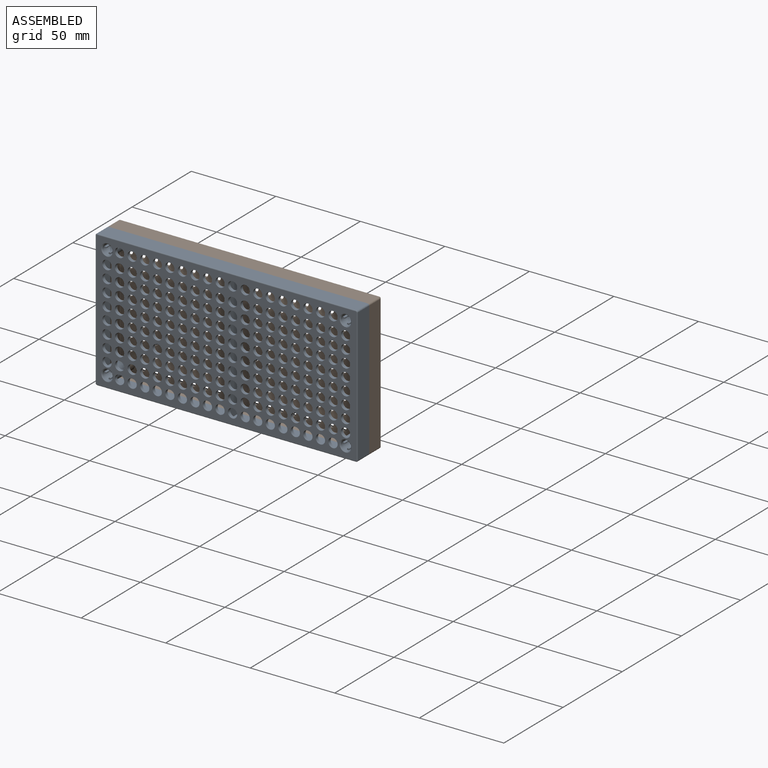
[diagram: assembled view]
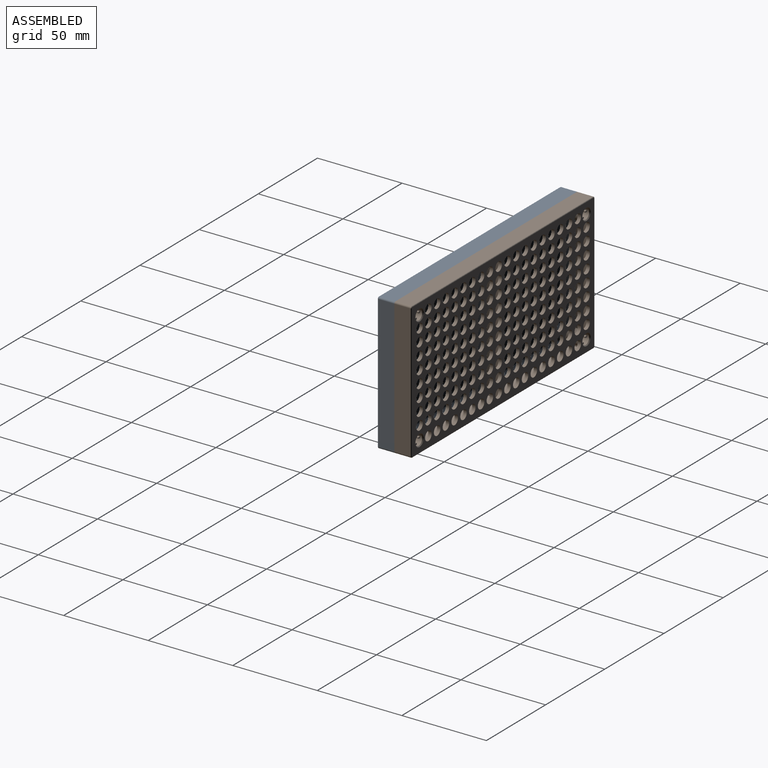
[diagram: assembled view, second angle]
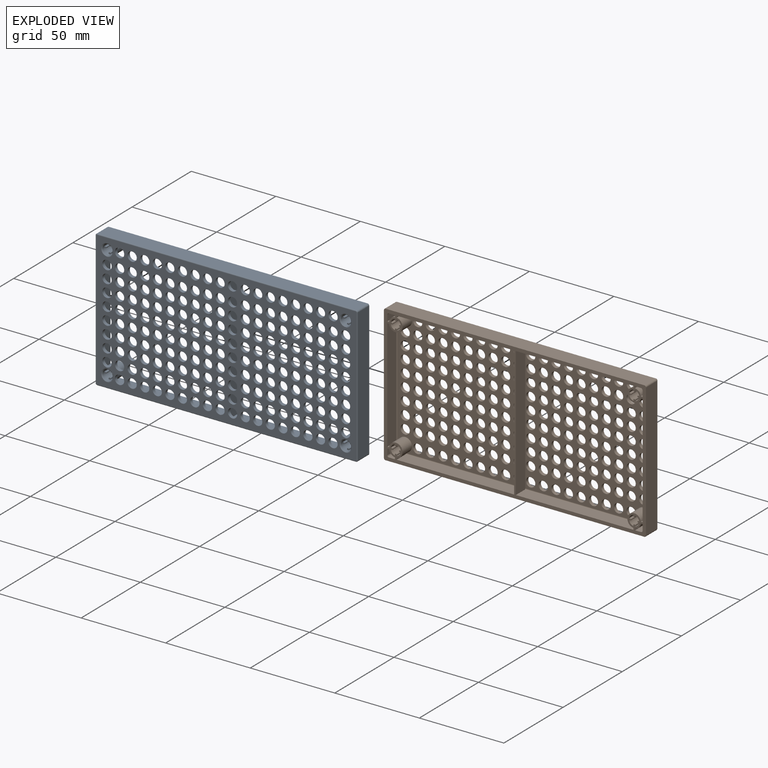
[diagram: exploded view]
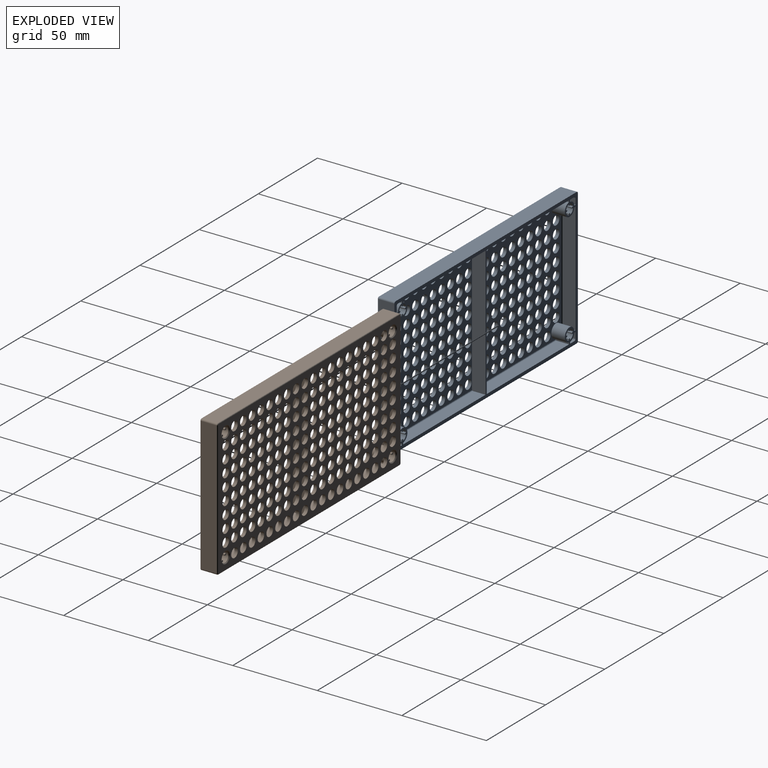
[diagram: exploded view, second angle]
ASSEMBLY  parts=2 mates=2
PART A: 370 faces, bbox 155.2x10x81.2 mm
  f0: plane 154x80mm, normal (0,1,0), area 7509.2mm2, adj f1,f2,f3,f4,f5,f6,f7,f8
  f1: torus R=0.5mm, axis (0,1,0), area 1mm2, adj f0,f2,f8,f10
  f2: cylinder r=0.5mm len=79mm, axis (0,0,1), area 62mm2, adj f0,f1,f3,f11
  f3: torus R=0.5mm, axis (0,-1,0), area 1mm2, adj f0,f2,f4,f12
  f4: cylinder r=0.5mm len=153mm, axis (1,0,0), area 120.2mm2, adj f0,f3,f5,f13
  f5: torus R=0.5mm, axis (0,1,0), area 1mm2, adj f0,f4,f6,f14
  f6: cylinder r=0.5mm len=79mm, axis (0,0,-1), area 62mm2, adj f0,f5,f7,f15
  f7: torus R=0.5mm, axis (0,1,0), area 1mm2, adj f0,f6,f8,f16
  f8: cylinder r=0.5mm len=153mm, axis (-1,0,0), area 120.2mm2, adj f0,f1,f7,f9
  f9: plane 153x9.5mm, normal (0,0,-1), area 1453.5mm2, adj f8,f10,f16,f17
  f10: cylinder r=1mm len=9.5mm, axis (0,1,0), area 14.9mm2, adj f1,f9,f11,f17
  f11: plane 79x9.5mm, normal (-1,0,0), area 750.5mm2, adj f2,f10,f12,f17
  f12: cylinder r=1mm len=9.5mm, axis (0,-1,0), area 14.9mm2, adj f3,f11,f13,f17
  f13: plane 153x9.5mm, normal (0,0,1), area 1453.5mm2, adj f4,f12,f14,f17
  f14: cylinder r=1mm len=9.5mm, axis (0,1,0), area 14.9mm2, adj f5,f13,f15,f17
  f15: plane 79x9.5mm, normal (1,0,0), area 750.5mm2, adj f6,f14,f16,f17
  f16: cylinder r=1mm len=9.5mm, axis (0,1,0), area 14.9mm2, adj f7,f9,f15,f17
  f17: plane 155x81mm, normal (0,-1,0), area 1115.8mm2, adj f9,f10,f11,f12,f13,f14,f15,f16
  f18: plane 8x1.03mm, normal (0,0,1), area 8.2mm2, adj f17,f20,f27,f34,f84
  f19: plane 7.5x3.5mm, normal (1,0,0), area 26.3mm2, adj f17,f22,f26,f100
  f20: plane 7.5x3.5mm, normal (1,0,0), area 26.3mm2, adj f17,f18,f27,f88
  f21: plane 66x7.5mm, normal (1,0,0), area 495mm2, adj f17,f25,f28,f85
  f22: plane 8x1.03mm, normal (0,0,-1), area 8.2mm2, adj f17,f19,f24,f26,f32
  f23: cylinder r=4mm len=8mm, axis (0,-1,0), area 142.8mm2, adj f17,f25,f33,f98
  f24: cylinder r=4mm len=8mm, axis (0,-1,0), area 42.2mm2, adj f17,f22,f32,f99
  f25: plane 8x1.03mm, normal (0,0,1), area 8.2mm2, adj f17,f21,f23,f28,f33
  f26: cylinder r=0.5mm len=3.5mm, axis (0,0,1), area 2.7mm2, adj f19,f22,f32,f101
  f27: cylinder r=0.5mm len=3.5mm, axis (0,0,1), area 2.7mm2, adj f18,f20,f34,f89
  f28: cylinder r=0.5mm len=66mm, axis (0,0,1), area 51.8mm2, adj f21,f25,f33,f85
  f29: plane 3.8x3.8mm, normal (0,-1,0), area 6.9mm2, adj f35,f37,f41,f58,f65,f70
  f30: plane 76x74.5mm, normal (0,-1,0), area 3216.5mm2, adj f36,f38,f40,f44,f45,f49,f55,f57
  f31: plane 4x4mm, normal (0,-1,0), area 7.1mm2, adj f46,f54,f56,f59,f90,f92
  f32: plane 4x4mm, normal (0,-1,0), area 7.1mm2, adj f22,f24,f26,f48,f99,f101
  f33: plane 76x74.5mm, normal (0,-1,0), area 3216.8mm2, adj f23,f25,f28,f42,f47,f82,f83,f85
  f34: plane 4x4mm, normal (0,-1,0), area 7.1mm2, adj f18,f27,f43,f84,f86,f89
  f35: cylinder r=0.2mm len=0.56mm, axis (0,0,1), area 0.2mm2, adj f29,f37,f79,f80,f81
  f36: cylinder r=4mm len=8mm, axis (0,-1,0), area 140.1mm2, adj f17,f30,f38,f77,f95,f96
  f37: cylinder r=4mm len=8mm, axis (0,-1,0), area 39.5mm2, adj f17,f29,f35,f64,f65,f81
  f38: cylinder r=0.2mm len=0.56mm, axis (0,0,-1), area 0.2mm2, adj f30,f36,f39,f76,f77
  f39: torus R=0.3mm, axis (1,0,0), area 0.2mm2, adj f38,f40,f75,f76
  f40: cylinder r=0.5mm len=69.3mm, axis (1,0,0), area 54.4mm2, adj f30,f39,f44,f71
  f41: cylinder r=0.5mm len=3.3mm, axis (1,0,0), area 2.6mm2, adj f29,f70,f72,f79
  f42: cylinder r=0.5mm len=69.5mm, axis (1,0,0), area 54.6mm2, adj f33,f73,f82,f87
  f43: cylinder r=0.5mm len=3.5mm, axis (1,0,0), area 2.7mm2, adj f34,f74,f86,f89
  f44: plane 77x8mm, normal (1,0,0), area 615.9mm2, adj f17,f30,f40,f45,f50,f71
  f45: cylinder r=0.5mm len=69.5mm, axis (-1,0,0), area 54.6mm2, adj f30,f44,f49,f50
  f46: cylinder r=0.5mm len=3.5mm, axis (-1,0,0), area 2.7mm2, adj f31,f51,f54,f92
  f47: cylinder r=0.5mm len=69.5mm, axis (-1,0,0), area 54.6mm2, adj f33,f52,f87,f98
  f48: cylinder r=0.5mm len=3.5mm, axis (-1,0,0), area 2.7mm2, adj f32,f53,f99,f101
  f49: plane 8x1.03mm, normal (-1,0,0), area 8.2mm2, adj f17,f30,f45,f50,f55
  f50: plane 69.5x7.5mm, normal (0,0,1), area 521.2mm2, adj f17,f44,f45,f49
  f51: plane 7.5x3.5mm, normal (0,0,1), area 26.3mm2, adj f17,f46,f54,f91
  f52: plane 69.5x7.5mm, normal (0,0,1), area 521.3mm2, adj f17,f47,f87,f98
  f53: plane 7.5x3.5mm, normal (0,0,1), area 26.3mm2, adj f17,f48,f99,f100
  f54: plane 8x1.03mm, normal (1,0,0), area 8.2mm2, adj f17,f31,f46,f51,f56
  f55: cylinder r=4mm len=8mm, axis (0,1,0), area 142.8mm2, adj f17,f30,f49,f57
  f56: cylinder r=4mm len=8mm, axis (0,1,0), area 42.2mm2, adj f17,f31,f54,f90
  f57: plane 8x1.03mm, normal (0,0,1), area 8.2mm2, adj f17,f30,f55,f60,f68
  f58: cylinder r=0.5mm len=3.3mm, axis (0,0,-1), area 2.6mm2, adj f29,f61,f66,f70
  f59: cylinder r=0.5mm len=3.5mm, axis (0,0,-1), area 2.7mm2, adj f31,f67,f90,f92
  f60: cylinder r=0.5mm len=65.8mm, axis (0,0,-1), area 51.7mm2, adj f30,f57,f68,f94
  f61: torus R=0.3mm, axis (0,0,-1), area 0.2mm2, adj f58,f62,f63,f65
  f62: cylinder r=0.2mm len=7.5mm, axis (0,1,0), area 2.4mm2, adj f17,f61,f63,f66
  f63: plane 7.8x0.66mm, normal (0,0,1), area 5.1mm2, adj f17,f61,f62,f64,f65
  f64: cylinder r=0.2mm len=8mm, axis (0,-1,0), area 2.2mm2, adj f17,f37,f63,f65
  f65: cylinder r=0.2mm len=0.56mm, axis (-1,0,0), area 0.2mm2, adj f29,f37,f61,f63,f64
  f66: plane 7.5x3.3mm, normal (-1,0,0), area 24.7mm2, adj f17,f58,f62,f69
  f67: plane 7.5x3.5mm, normal (-1,0,0), area 26.2mm2, adj f17,f59,f90,f91
  f68: plane 65.8x7.5mm, normal (-1,0,0), area 493.5mm2, adj f17,f57,f60,f93
  f69: cylinder r=1mm len=7.5mm, axis (0,-1,0), area 11.8mm2, adj f17,f66,f70,f72
  f70: torus R=0.5mm, axis (0,-1,0), area 1mm2, adj f29,f41,f58,f69
  f71: plane 69.3x7.5mm, normal (0,0,-1), area 519.7mm2, adj f17,f40,f44,f75
  f72: plane 7.5x3.3mm, normal (0,0,-1), area 24.8mm2, adj f17,f41,f69,f78
  f73: plane 69.5x7.5mm, normal (0,0,-1), area 521.2mm2, adj f17,f42,f82,f87
  f74: plane 7.5x3.5mm, normal (0,0,-1), area 26.3mm2, adj f17,f43,f86,f88
  f75: cylinder r=0.2mm len=7.5mm, axis (0,1,0), area 2.4mm2, adj f17,f39,f71,f76
  f76: plane 7.8x0.66mm, normal (-1,0,0), area 5.1mm2, adj f17,f38,f39,f75,f77
  f77: cylinder r=0.2mm len=8mm, axis (0,-1,0), area 2.2mm2, adj f17,f36,f38,f76
  f78: cylinder r=0.2mm len=7.5mm, axis (0,-1,0), area 2.4mm2, adj f17,f72,f79,f80
  f79: torus R=0.3mm, axis (1,0,0), area 0.2mm2, adj f35,f41,f78,f80
  f80: plane 7.8x0.66mm, normal (1,0,0), area 5.1mm2, adj f17,f35,f78,f79,f81
  f81: cylinder r=0.2mm len=8mm, axis (0,1,0), area 2.2mm2, adj f17,f35,f37,f80
  f82: plane 8x1.03mm, normal (1,0,0), area 8.2mm2, adj f17,f33,f42,f73,f83
  f83: cylinder r=4mm len=8mm, axis (0,1,0), area 142.8mm2, adj f17,f33,f82,f85
  f84: cylinder r=4mm len=8mm, axis (0,1,0), area 42.2mm2, adj f17,f18,f34,f86
  f85: plane 8x1.03mm, normal (0,0,-1), area 8.2mm2, adj f17,f21,f28,f33,f83
  f86: plane 8x1.03mm, normal (-1,0,0), area 8.2mm2, adj f17,f34,f43,f74,f84
  f87: plane 77x8mm, normal (-1,0,0), area 615.9mm2, adj f17,f33,f42,f47,f52,f73
  f88: cylinder r=1mm len=7.5mm, axis (0,-1,0), area 11.8mm2, adj f17,f20,f74,f89
  f89: torus R=0.5mm, axis (0,-1,0), area 1mm2, adj f27,f34,f43,f88
  f90: plane 8x1.03mm, normal (0,0,-1), area 8.2mm2, adj f17,f31,f56,f59,f67
  f91: cylinder r=1mm len=7.5mm, axis (0,-1,0), area 11.8mm2, adj f17,f51,f67,f92
  f92: torus R=0.5mm, axis (0,-1,0), area 1mm2, adj f31,f46,f59,f91
  f93: cylinder r=0.2mm len=7.5mm, axis (0,-1,0), area 2.4mm2, adj f17,f68,f94,f97
  f94: torus R=0.3mm, axis (0,0,-1), area 0.2mm2, adj f60,f93,f95,f97
  f95: cylinder r=0.2mm len=0.56mm, axis (1,0,0), area 0.2mm2, adj f30,f36,f94,f96,f97
  f96: cylinder r=0.2mm len=8mm, axis (0,1,0), area 2.2mm2, adj f17,f36,f95,f97
  f97: plane 7.8x0.66mm, normal (0,0,-1), area 5.1mm2, adj f17,f93,f94,f95,f96
  f98: plane 8x1.03mm, normal (1,0,0), area 8.2mm2, adj f17,f23,f33,f47,f52
  f99: plane 8x1.03mm, normal (-1,0,0), area 8.2mm2, adj f17,f24,f32,f48,f53
  f100: cylinder r=1mm len=7.5mm, axis (0,-1,0), area 11.8mm2, adj f17,f19,f53,f101
  f101: torus R=0.5mm, axis (0,-1,0), area 1mm2, adj f26,f32,f48,f100
  f102: cylinder r=2.75mm len=5.5mm, axis (0,-1,0), area 34.6mm2, adj f0,f30
  f103: cylinder r=2.75mm len=5.5mm, axis (0,-1,0), area 34.6mm2, adj f0,f30
  f104: cylinder r=2.75mm len=5.5mm, axis (0,-1,0), area 34.6mm2, adj f0,f30
  f105: cylinder r=2.75mm len=5.5mm, axis (0,-1,0), area 34.6mm2, adj f0,f30
  f106: cylinder r=2.75mm len=5.5mm, axis (0,-1,0), area 34.6mm2, adj f0,f30
  f107: cylinder r=2.75mm len=5.5mm, axis (0,-1,0), area 34.6mm2, adj f0,f30
  f108: cylinder r=2.75mm len=5.5mm, axis (0,-1,0), area 34.6mm2, adj f0,f30
  f109: cylinder r=2.75mm len=5.5mm, axis (0,-1,0), area 34.6mm2, adj f0,f30
  f110: cylinder r=2.75mm len=5.5mm, axis (0,-1,0), area 34.6mm2, adj f0,f30
  f111: cylinder r=2.75mm len=5.5mm, axis (0,-1,0), area 34.6mm2, adj f0,f30
  f112: cylinder r=2.75mm len=5.5mm, axis (0,-1,0), area 34.6mm2, adj f0,f30
  f113: cylinder r=2.75mm len=5.5mm, axis (0,-1,0), area 34.6mm2, adj f0,f30
  f114: cylinder r=2.75mm len=5.5mm, axis (0,-1,0), area 34.6mm2, adj f0,f30
  f115: cylinder r=2.75mm len=5.5mm, axis (0,-1,0), area 34.6mm2, adj f0,f30
  f116: cylinder r=2.75mm len=5.5mm, axis (0,-1,0), area 34.6mm2, adj f0,f30
  f117: cylinder r=2.75mm len=5.5mm, axis (0,-1,0), area 34.6mm2, adj f0,f30
  f118: cylinder r=2.75mm len=5.5mm, axis (0,-1,0), area 34.6mm2, adj f0,f30
  f119: cylinder r=2.75mm len=5.5mm, axis (0,-1,0), area 34.6mm2, adj f0,f30
  f120: cylinder r=2.75mm len=5.5mm, axis (0,-1,0), area 34.6mm2, adj f0,f30
  f121: cylinder r=2.75mm len=5.5mm, axis (0,-1,0), area 34.6mm2, adj f0,f30
  f122: cylinder r=2.75mm len=5.5mm, axis (0,-1,0), area 34.6mm2, adj f0,f30
  f123: cylinder r=2.75mm len=5.5mm, axis (0,-1,0), area 34.6mm2, adj f0,f30
  f124: cylinder r=2.75mm len=5.5mm, axis (0,-1,0), area 34.6mm2, adj f0,f30
  f125: cylinder r=2.75mm len=5.5mm, axis (0,-1,0), area 34.6mm2, adj f0,f30
  f126: cylinder r=2.75mm len=5.5mm, axis (0,-1,0), area 34.6mm2, adj f0,f30
  f127: cylinder r=2.75mm len=5.5mm, axis (0,-1,0), area 34.6mm2, adj f0,f30
  f128: cylinder r=2.75mm len=5.5mm, axis (0,-1,0), area 34.6mm2, adj f0,f30
  f129: cylinder r=2.75mm len=5.5mm, axis (0,-1,0), area 34.6mm2, adj f0,f30
  f130: cylinder r=2.75mm len=5.5mm, axis (0,-1,0), area 34.6mm2, adj f0,f30
  f131: cylinder r=2.75mm len=5.5mm, axis (0,-1,0), area 34.6mm2, adj f0,f30
  f132: cylinder r=2.75mm len=5.5mm, axis (0,-1,0), area 34.6mm2, adj f0,f30
  f133: cylinder r=2.75mm len=5.5mm, axis (0,-1,0), area 34.6mm2, adj f0,f30
  f134: cylinder r=2.75mm len=5.5mm, axis (0,-1,0), area 34.6mm2, adj f0,f30
  f135: cylinder r=2.75mm len=5.5mm, axis (0,-1,0), area 34.6mm2, adj f0,f30
  f136: cylinder r=2.75mm len=5.5mm, axis (0,-1,0), area 34.6mm2, adj f0,f30
  f137: cylinder r=2.75mm len=5.5mm, axis (0,-1,0), area 34.6mm2, adj f0,f30
  f138: cylinder r=2.75mm len=5.5mm, axis (0,-1,0), area 34.6mm2, adj f0,f30
  f139: cylinder r=2.75mm len=5.5mm, axis (0,-1,0), area 34.6mm2, adj f0,f30
  f140: cylinder r=2.75mm len=5.5mm, axis (0,-1,0), area 34.6mm2, adj f0,f30
  f141: cylinder r=2.75mm len=5.5mm, axis (0,-1,0), area 34.6mm2, adj f0,f30
  f142: cylinder r=2.75mm len=5.5mm, axis (0,-1,0), area 34.6mm2, adj f0,f30
  f143: cylinder r=2.75mm len=5.5mm, axis (0,-1,0), area 34.6mm2, adj f0,f30
  f144: cylinder r=2.75mm len=5.5mm, axis (0,-1,0), area 34.6mm2, adj f0,f30
  f145: cylinder r=2.75mm len=5.5mm, axis (0,-1,0), area 34.6mm2, adj f0,f30
  f146: cylinder r=2.75mm len=5.5mm, axis (0,-1,0), area 34.6mm2, adj f0,f30
  f147: cylinder r=2.75mm len=5.5mm, axis (0,-1,0), area 34.6mm2, adj f0,f30
  f148: cylinder r=2.75mm len=5.5mm, axis (0,-1,0), area 34.6mm2, adj f0,f30
  f149: cylinder r=2.75mm len=5.5mm, axis (0,-1,0), area 34.6mm2, adj f0,f30
  f150: cylinder r=2.75mm len=5.5mm, axis (0,-1,0), area 34.6mm2, adj f0,f30
  f151: cylinder r=2.75mm len=5.5mm, axis (0,-1,0), area 34.6mm2, adj f0,f30
  f152: cylinder r=2.75mm len=5.5mm, axis (0,-1,0), area 34.6mm2, adj f0,f30
  f153: cylinder r=2.75mm len=5.5mm, axis (0,-1,0), area 34.6mm2, adj f0,f30
  f154: cylinder r=2.75mm len=5.5mm, axis (0,-1,0), area 34.6mm2, adj f0,f30
  f155: cylinder r=2.75mm len=5.5mm, axis (0,-1,0), area 34.6mm2, adj f0,f30
  f156: cylinder r=2.75mm len=5.5mm, axis (0,-1,0), area 34.6mm2, adj f0,f30
  f157: cylinder r=2.75mm len=5.5mm, axis (0,-1,0), area 34.6mm2, adj f0,f30
  f158: cylinder r=2.75mm len=5.5mm, axis (0,-1,0), area 34.6mm2, adj f0,f30
  f159: cylinder r=2.75mm len=5.5mm, axis (0,-1,0), area 34.6mm2, adj f0,f30
  f160: cylinder r=2.75mm len=5.5mm, axis (0,-1,0), area 34.6mm2, adj f0,f30
  f161: cylinder r=2.75mm len=5.5mm, axis (0,-1,0), area 34.6mm2, adj f0,f30
  f162: cylinder r=2.75mm len=5.5mm, axis (0,-1,0), area 34.6mm2, adj f0,f30
  f163: cylinder r=2.75mm len=5.5mm, axis (0,-1,0), area 34.6mm2, adj f0,f30
  f164: cylinder r=2.75mm len=5.5mm, axis (0,-1,0), area 34.6mm2, adj f0,f30
  f165: cylinder r=2.75mm len=5.5mm, axis (0,-1,0), area 34.6mm2, adj f0,f30
  f166: cylinder r=2.75mm len=5.5mm, axis (0,-1,0), area 34.6mm2, adj f0,f30
  f167: cylinder r=2.75mm len=5.5mm, axis (0,-1,0), area 34.6mm2, adj f0,f30
  f168: cylinder r=2.75mm len=5.5mm, axis (0,-1,0), area 34.6mm2, adj f0,f30
  f169: cylinder r=2.75mm len=5.5mm, axis (0,-1,0), area 34.6mm2, adj f0,f30
  f170: cylinder r=2.75mm len=5.5mm, axis (0,-1,0), area 34.6mm2, adj f0,f30
  f171: cylinder r=2.75mm len=5.5mm, axis (0,-1,0), area 34.6mm2, adj f0,f30
  f172: cylinder r=2.75mm len=5.5mm, axis (0,-1,0), area 34.6mm2, adj f0,f30
  f173: cylinder r=2.75mm len=5.5mm, axis (0,-1,0), area 34.6mm2, adj f0,f30
  f174: cylinder r=2.75mm len=5.5mm, axis (0,-1,0), area 34.6mm2, adj f0,f30
  f175: cylinder r=2.75mm len=5.5mm, axis (0,-1,0), area 34.6mm2, adj f0,f30
  f176: cylinder r=2.75mm len=5.5mm, axis (0,-1,0), area 34.6mm2, adj f0,f30
  f177: cylinder r=2.75mm len=5.5mm, axis (0,-1,0), area 34.6mm2, adj f0,f30
  f178: cylinder r=2.75mm len=5.5mm, axis (0,-1,0), area 34.6mm2, adj f0,f30
  f179: cylinder r=2.75mm len=5.5mm, axis (0,-1,0), area 34.6mm2, adj f0,f30
  f180: cylinder r=2.75mm len=5.5mm, axis (0,-1,0), area 34.6mm2, adj f0,f30
  f181: cylinder r=2.75mm len=5.5mm, axis (0,-1,0), area 34.6mm2, adj f0,f30
  f182: cylinder r=2.75mm len=5.5mm, axis (0,-1,0), area 34.6mm2, adj f0,f33
  f183: cylinder r=2.75mm len=5.5mm, axis (0,-1,0), area 34.6mm2, adj f0,f33
  f184: cylinder r=2.75mm len=5.5mm, axis (0,-1,0), area 34.6mm2, adj f0,f33
  f185: cylinder r=2.75mm len=5.5mm, axis (0,-1,0), area 34.6mm2, adj f0,f33
  f186: cylinder r=2.75mm len=5.5mm, axis (0,-1,0), area 34.6mm2, adj f0,f33
  f187: cylinder r=2.75mm len=5.5mm, axis (0,-1,0), area 34.6mm2, adj f0,f33
  f188: cylinder r=2.75mm len=5.5mm, axis (0,-1,0), area 34.6mm2, adj f0,f33
  f189: cylinder r=2.75mm len=5.5mm, axis (0,-1,0), area 34.6mm2, adj f0,f33
  f190: cylinder r=2.75mm len=5.5mm, axis (0,-1,0), area 34.6mm2, adj f0,f33
  f191: cylinder r=2.75mm len=5.5mm, axis (0,-1,0), area 34.6mm2, adj f0,f33
  f192: cylinder r=2.75mm len=5.5mm, axis (0,-1,0), area 34.6mm2, adj f0,f33
  f193: cylinder r=2.75mm len=5.5mm, axis (0,-1,0), area 34.6mm2, adj f0,f33
  f194: cylinder r=2.75mm len=5.5mm, axis (0,-1,0), area 34.6mm2, adj f0,f33
  f195: cylinder r=2.75mm len=5.5mm, axis (0,-1,0), area 34.6mm2, adj f0,f33
  f196: cylinder r=2.75mm len=5.5mm, axis (0,-1,0), area 34.6mm2, adj f0,f33
  f197: cylinder r=2.75mm len=5.5mm, axis (0,-1,0), area 34.6mm2, adj f0,f33
  f198: cylinder r=2.75mm len=5.5mm, axis (0,-1,0), area 34.6mm2, adj f0,f33
  f199: cylinder r=2.75mm len=5.5mm, axis (0,-1,0), area 34.6mm2, adj f0,f33
  f200: cylinder r=2.75mm len=5.5mm, axis (0,-1,0), area 34.6mm2, adj f0,f33
  f201: cylinder r=2.75mm len=5.5mm, axis (0,-1,0), area 34.6mm2, adj f0,f33
  f202: cylinder r=2.75mm len=5.5mm, axis (0,-1,0), area 34.6mm2, adj f0,f33
  f203: cylinder r=2.75mm len=5.5mm, axis (0,-1,0), area 34.6mm2, adj f0,f33
  f204: cylinder r=2.75mm len=5.5mm, axis (0,-1,0), area 34.6mm2, adj f0,f33
  f205: cylinder r=2.75mm len=5.5mm, axis (0,-1,0), area 34.6mm2, adj f0,f33
  f206: cylinder r=2.75mm len=5.5mm, axis (0,-1,0), area 34.6mm2, adj f0,f33
  f207: cylinder r=2.75mm len=5.5mm, axis (0,-1,0), area 34.6mm2, adj f0,f33
  f208: cylinder r=2.75mm len=5.5mm, axis (0,-1,0), area 34.6mm2, adj f0,f33
  f209: cylinder r=2.75mm len=5.5mm, axis (0,-1,0), area 34.6mm2, adj f0,f33
  f210: cylinder r=2.75mm len=5.5mm, axis (0,-1,0), area 34.6mm2, adj f0,f33
  f211: cylinder r=2.75mm len=5.5mm, axis (0,-1,0), area 34.6mm2, adj f0,f33
  f212: cylinder r=2.75mm len=5.5mm, axis (0,-1,0), area 34.6mm2, adj f0,f33
  f213: cylinder r=2.75mm len=5.5mm, axis (0,-1,0), area 34.6mm2, adj f0,f33
  f214: cylinder r=2.75mm len=5.5mm, axis (0,-1,0), area 34.6mm2, adj f0,f33
  f215: cylinder r=2.75mm len=5.5mm, axis (0,-1,0), area 34.6mm2, adj f0,f33
  f216: cylinder r=2.75mm len=5.5mm, axis (0,-1,0), area 34.6mm2, adj f0,f33
  f217: cylinder r=2.75mm len=5.5mm, axis (0,-1,0), area 34.6mm2, adj f0,f33
  f218: cylinder r=2.75mm len=5.5mm, axis (0,-1,0), area 34.6mm2, adj f0,f33
  f219: cylinder r=2.75mm len=5.5mm, axis (0,-1,0), area 34.6mm2, adj f0,f33
  f220: cylinder r=2.75mm len=5.5mm, axis (0,-1,0), area 34.6mm2, adj f0,f33
  f221: cylinder r=2.75mm len=5.5mm, axis (0,-1,0), area 34.6mm2, adj f0,f33
  f222: cylinder r=2.75mm len=5.5mm, axis (0,-1,0), area 34.6mm2, adj f0,f33
  f223: cylinder r=2.75mm len=5.5mm, axis (0,-1,0), area 34.6mm2, adj f0,f33
  f224: cylinder r=2.75mm len=5.5mm, axis (0,-1,0), area 34.6mm2, adj f0,f33
  f225: cylinder r=2.75mm len=5.5mm, axis (0,-1,0), area 34.6mm2, adj f0,f33
  f226: cylinder r=2.75mm len=5.5mm, axis (0,-1,0), area 34.6mm2, adj f0,f33
  f227: cylinder r=2.75mm len=5.5mm, axis (0,-1,0), area 34.6mm2, adj f0,f33
  f228: cylinder r=2.75mm len=5.5mm, axis (0,-1,0), area 34.6mm2, adj f0,f33
  f229: cylinder r=2.75mm len=5.5mm, axis (0,-1,0), area 34.6mm2, adj f0,f33
  f230: cylinder r=2.75mm len=5.5mm, axis (0,-1,0), area 34.6mm2, adj f0,f33
  f231: cylinder r=2.75mm len=5.5mm, axis (0,-1,0), area 34.6mm2, adj f0,f33
  f232: cylinder r=2.75mm len=5.5mm, axis (0,-1,0), area 34.6mm2, adj f0,f33
  f233: cylinder r=2.75mm len=5.5mm, axis (0,-1,0), area 34.6mm2, adj f0,f33
  f234: cylinder r=2.75mm len=5.5mm, axis (0,-1,0), area 34.6mm2, adj f0,f33
  f235: cylinder r=2.75mm len=5.5mm, axis (0,-1,0), area 34.6mm2, adj f0,f33
  f236: cylinder r=2.75mm len=5.5mm, axis (0,-1,0), area 34.6mm2, adj f0,f33
  f237: cylinder r=2.75mm len=5.5mm, axis (0,-1,0), area 34.6mm2, adj f0,f33
  f238: cylinder r=2.75mm len=5.5mm, axis (0,-1,0), area 34.6mm2, adj f0,f33
  f239: cylinder r=2.75mm len=5.5mm, axis (0,-1,0), area 34.6mm2, adj f0,f33
  f240: cylinder r=2.75mm len=5.5mm, axis (0,-1,0), area 34.6mm2, adj f0,f33
  f241: cylinder r=2.75mm len=5.5mm, axis (0,-1,0), area 34.6mm2, adj f0,f33
  f242: cylinder r=2.75mm len=5.5mm, axis (0,-1,0), area 34.6mm2, adj f0,f33
  f243: cylinder r=2.75mm len=5.5mm, axis (0,-1,0), area 34.6mm2, adj f0,f33
  f244: cylinder r=2.75mm len=5.5mm, axis (0,-1,0), area 34.6mm2, adj f0,f33
  f245: cylinder r=2.75mm len=5.5mm, axis (0,-1,0), area 34.6mm2, adj f0,f33
  f246: cylinder r=2.75mm len=5.5mm, axis (0,-1,0), area 34.6mm2, adj f0,f33
  f247: cylinder r=2.75mm len=5.5mm, axis (0,-1,0), area 34.6mm2, adj f0,f33
  f248: cylinder r=2.75mm len=5.5mm, axis (0,-1,0), area 34.6mm2, adj f0,f33
  f249: cylinder r=2.75mm len=5.5mm, axis (0,-1,0), area 34.6mm2, adj f0,f33
  f250: cylinder r=2.75mm len=5.5mm, axis (0,-1,0), area 34.6mm2, adj f0,f33
  f251: cylinder r=2.75mm len=5.5mm, axis (0,-1,0), area 34.6mm2, adj f0,f33
  f252: cylinder r=2.75mm len=5.5mm, axis (0,-1,0), area 34.6mm2, adj f0,f33
  f253: cylinder r=2.75mm len=5.5mm, axis (0,-1,0), area 34.6mm2, adj f0,f33
  f254: cylinder r=2.75mm len=5.5mm, axis (0,-1,0), area 34.6mm2, adj f0,f33
  f255: cylinder r=2.75mm len=5.5mm, axis (0,-1,0), area 34.6mm2, adj f0,f33
  f256: cylinder r=2.75mm len=5.5mm, axis (0,-1,0), area 34.6mm2, adj f0,f33
  f257: cylinder r=2.75mm len=5.5mm, axis (0,-1,0), area 34.6mm2, adj f0,f33
  f258: cylinder r=2.75mm len=5.5mm, axis (0,-1,0), area 34.6mm2, adj f0,f33
  f259: cylinder r=2.75mm len=5.5mm, axis (0,-1,0), area 34.6mm2, adj f0,f33
  f260: cylinder r=2.75mm len=5.5mm, axis (0,-1,0), area 34.6mm2, adj f0,f33
  f261: cylinder r=2.75mm len=5.5mm, axis (0,-1,0), area 34.6mm2, adj f0,f33
  f262: cylinder r=2.75mm len=5.5mm, axis (0,-1,0), area 34.6mm2, adj f0,f30
  f263: cylinder r=2.75mm len=5.5mm, axis (0,-1,0), area 34.6mm2, adj f0,f30
  f264: cylinder r=2.75mm len=5.5mm, axis (0,-1,0), area 34.6mm2, adj f0,f30
  f265: cylinder r=2.75mm len=5.5mm, axis (0,-1,0), area 34.6mm2, adj f0,f30
  f266: cylinder r=2.75mm len=5.5mm, axis (0,-1,0), area 34.6mm2, adj f0,f30
  f267: cylinder r=2.75mm len=5.5mm, axis (0,-1,0), area 34.6mm2, adj f0,f30
  f268: cylinder r=2.75mm len=5.5mm, axis (0,-1,0), area 34.6mm2, adj f0,f30
  f269: cylinder r=2.75mm len=5.5mm, axis (0,-1,0), area 34.6mm2, adj f0,f30
  f270: cylinder r=2.75mm len=5.5mm, axis (0,-1,0), area 34.6mm2, adj f0,f30
  f271: cylinder r=2.75mm len=5.5mm, axis (0,-1,0), area 34.6mm2, adj f0,f33
  f272: cylinder r=2.75mm len=5.5mm, axis (0,-1,0), area 34.6mm2, adj f0,f33
  f273: cylinder r=2.75mm len=5.5mm, axis (0,-1,0), area 34.6mm2, adj f0,f33
  f274: cylinder r=2.75mm len=5.5mm, axis (0,-1,0), area 34.6mm2, adj f0,f33
  f275: cylinder r=2.75mm len=5.5mm, axis (0,-1,0), area 34.6mm2, adj f0,f33
  f276: cylinder r=2.75mm len=5.5mm, axis (0,-1,0), area 34.6mm2, adj f0,f33
  f277: cylinder r=2.75mm len=5.5mm, axis (0,-1,0), area 34.6mm2, adj f0,f33
  f278: cylinder r=2.75mm len=5.5mm, axis (0,-1,0), area 34.6mm2, adj f0,f33
  f279: cylinder r=2.75mm len=5.5mm, axis (0,-1,0), area 34.6mm2, adj f0,f33
  f280: cylinder r=2.75mm len=5.5mm, axis (0,1,0), area 34.6mm2, adj f0,f30
  f281: cylinder r=2.75mm len=5.5mm, axis (0,1,0), area 34.6mm2, adj f0,f30
  f282: cylinder r=2.75mm len=5.5mm, axis (0,1,0), area 34.6mm2, adj f0,f30
  f283: cylinder r=2.75mm len=5.5mm, axis (0,1,0), area 34.6mm2, adj f0,f30
  f284: cylinder r=2.75mm len=5.5mm, axis (0,1,0), area 34.6mm2, adj f0,f30
  f285: cylinder r=2.75mm len=5.5mm, axis (0,1,0), area 34.6mm2, adj f0,f30
  f286: cylinder r=2.75mm len=5.5mm, axis (0,1,0), area 34.6mm2, adj f0,f30
  f287: cylinder r=2.75mm len=5.5mm, axis (0,1,0), area 34.6mm2, adj f0,f30
  f288: cylinder r=2.75mm len=5.5mm, axis (0,1,0), area 34.6mm2, adj f0,f30
  f289: cylinder r=2.75mm len=5.5mm, axis (0,1,0), area 34.6mm2, adj f0,f33
  f290: cylinder r=2.75mm len=5.5mm, axis (0,1,0), area 34.6mm2, adj f0,f33
  f291: cylinder r=2.75mm len=5.5mm, axis (0,1,0), area 34.6mm2, adj f0,f33
  f292: cylinder r=2.75mm len=5.5mm, axis (0,1,0), area 34.6mm2, adj f0,f33
  f293: cylinder r=2.75mm len=5.5mm, axis (0,1,0), area 34.6mm2, adj f0,f33
  f294: cylinder r=2.75mm len=5.5mm, axis (0,1,0), area 34.6mm2, adj f0,f33
  f295: cylinder r=2.75mm len=5.5mm, axis (0,1,0), area 34.6mm2, adj f0,f33
  f296: cylinder r=2.75mm len=5.5mm, axis (0,1,0), area 34.6mm2, adj f0,f33
  f297: cylinder r=2.75mm len=5.5mm, axis (0,1,0), area 34.6mm2, adj f0,f33
  f298: cylinder r=0.5mm len=8mm, axis (0,1,0), area 12.6mm2, adj f17,f299,f314,f315
  f299: plane 8x0.5mm, normal (1,0,0), area 4mm2, adj f17,f298,f300,f315
  f300: cylinder r=3mm len=9.5mm, axis (0,-1,0), area 146.9mm2, adj f17,f299,f301,f302,f304,f305,f306,f308
  f301: cone r=3.25mm half-angle=45deg, axis (0,1,0), area 14.4mm2, adj f0,f300
  f302: plane 1.04x1mm, normal (0,1,0), area 0.9mm2, adj f300,f303,f304,f305
  f303: cylinder r=0.5mm len=8mm, axis (0,1,0), area 12.6mm2, adj f17,f302,f304,f305
  f304: plane 8x0.5mm, normal (0,0,1), area 4mm2, adj f17,f300,f302,f303
  f305: plane 8x0.5mm, normal (0,0,-1), area 4mm2, adj f17,f300,f302,f303
  f306: plane 8x0.5mm, normal (1,0,0), area 4mm2, adj f17,f300,f307,f308
  f307: cylinder r=0.5mm len=8mm, axis (0,1,0), area 12.6mm2, adj f17,f306,f308,f309
  f308: plane 1.04x1mm, normal (0,1,0), area 0.9mm2, adj f300,f306,f307,f309
  f309: plane 8x0.5mm, normal (-1,0,0), area 4mm2, adj f17,f300,f307,f308
  f310: plane 8x0.5mm, normal (0,0,-1), area 4mm2, adj f17,f300,f311,f313
  f311: cylinder r=0.5mm len=8mm, axis (0,1,0), area 12.6mm2, adj f17,f310,f312,f313
  f312: plane 8x0.5mm, normal (0,0,1), area 4mm2, adj f17,f300,f311,f313
  f313: plane 1.04x1mm, normal (0,1,0), area 0.9mm2, adj f300,f310,f311,f312
  f314: plane 8x0.5mm, normal (-1,0,0), area 4mm2, adj f17,f298,f300,f315
  f315: plane 1.04x1mm, normal (0,1,0), area 0.9mm2, adj f298,f299,f300,f314
  f316: cylinder r=0.5mm len=8mm, axis (0,-1,0), area 12.6mm2, adj f17,f317,f318,f333
  f317: plane 1.04x1mm, normal (0,1,0), area 0.9mm2, adj f316,f318,f319,f333
  f318: plane 8x0.5mm, normal (-1,0,0), area 4mm2, adj f17,f316,f317,f319
  f319: cylinder r=3mm len=9.5mm, axis (0,1,0), area 146.9mm2, adj f17,f317,f318,f320,f321,f323,f324,f325
  f320: cone r=3.25mm half-angle=45deg, axis (0,1,0), area 14.4mm2, adj f0,f319
  f321: plane 1.04x1mm, normal (0,1,0), area 0.9mm2, adj f319,f322,f323,f324
  f322: cylinder r=0.5mm len=8mm, axis (0,-1,0), area 12.6mm2, adj f17,f321,f323,f324
  f323: plane 8x0.5mm, normal (0,0,-1), area 4mm2, adj f17,f319,f321,f322
  f324: plane 8x0.5mm, normal (0,0,1), area 4mm2, adj f17,f319,f321,f322
  f325: plane 8x0.5mm, normal (-1,0,0), area 4mm2, adj f17,f319,f326,f328
  f326: cylinder r=0.5mm len=8mm, axis (0,-1,0), area 12.6mm2, adj f17,f325,f327,f328
  f327: plane 8x0.5mm, normal (1,0,0), area 4mm2, adj f17,f319,f326,f328
  f328: plane 1.04x1mm, normal (0,1,0), area 0.9mm2, adj f319,f325,f326,f327
  f329: plane 8x0.5mm, normal (0,0,1), area 4mm2, adj f17,f319,f330,f332
  f330: cylinder r=0.5mm len=8mm, axis (0,-1,0), area 12.6mm2, adj f17,f329,f331,f332
  f331: plane 8x0.5mm, normal (0,0,-1), area 4mm2, adj f17,f319,f330,f332
  f332: plane 1.04x1mm, normal (0,1,0), area 0.9mm2, adj f319,f329,f330,f331
  f333: plane 8x0.5mm, normal (1,0,0), area 4mm2, adj f17,f316,f317,f319
  f334: cylinder r=0.5mm len=8mm, axis (0,1,0), area 12.6mm2, adj f17,f335,f350,f351
  f335: plane 8x0.5mm, normal (-1,0,0), area 4mm2, adj f17,f334,f336,f351
  f336: cylinder r=3mm len=9.5mm, axis (0,-1,0), area 146.9mm2, adj f17,f335,f337,f338,f340,f341,f342,f344
  f337: cone r=3.25mm half-angle=45deg, axis (0,1,0), area 14.4mm2, adj f0,f336
  f338: plane 1.04x1mm, normal (0,1,0), area 0.9mm2, adj f336,f339,f340,f341
  f339: cylinder r=0.5mm len=8mm, axis (0,1,0), area 12.6mm2, adj f17,f338,f340,f341
  f340: plane 8x0.5mm, normal (0,0,-1), area 4mm2, adj f17,f336,f338,f339
  f341: plane 8x0.5mm, normal (0,0,1), area 4mm2, adj f17,f336,f338,f339
  f342: plane 8x0.5mm, normal (-1,0,0), area 4mm2, adj f17,f336,f343,f344
  f343: cylinder r=0.5mm len=8mm, axis (0,1,0), area 12.6mm2, adj f17,f342,f344,f345
  f344: plane 1.04x1mm, normal (0,1,0), area 0.9mm2, adj f336,f342,f343,f345
  f345: plane 8x0.5mm, normal (1,0,0), area 4mm2, adj f17,f336,f343,f344
  f346: plane 8x0.5mm, normal (0,0,1), area 4mm2, adj f17,f336,f347,f349
  f347: cylinder r=0.5mm len=8mm, axis (0,1,0), area 12.6mm2, adj f17,f346,f348,f349
  f348: plane 8x0.5mm, normal (0,0,-1), area 4mm2, adj f17,f336,f347,f349
  f349: plane 1.04x1mm, normal (0,1,0), area 0.9mm2, adj f336,f346,f347,f348
  f350: plane 8x0.5mm, normal (1,0,0), area 4mm2, adj f17,f334,f336,f351
  f351: plane 1.04x1mm, normal (0,1,0), area 0.9mm2, adj f334,f335,f336,f350
  f352: cylinder r=0.5mm len=8mm, axis (0,-1,0), area 12.6mm2, adj f17,f353,f354,f369
  f353: plane 1.04x1mm, normal (0,1,0), area 0.9mm2, adj f352,f354,f355,f369
  f354: plane 8x0.5mm, normal (1,0,0), area 4mm2, adj f17,f352,f353,f355
  f355: cylinder r=3mm len=9.5mm, axis (0,1,0), area 146.9mm2, adj f17,f353,f354,f356,f357,f359,f360,f361
  f356: cone r=3.25mm half-angle=45deg, axis (0,1,0), area 14.4mm2, adj f0,f355
  f357: plane 1.04x1mm, normal (0,1,0), area 0.9mm2, adj f355,f358,f359,f360
  f358: cylinder r=0.5mm len=8mm, axis (0,-1,0), area 12.6mm2, adj f17,f357,f359,f360
  f359: plane 8x0.5mm, normal (0,0,1), area 4mm2, adj f17,f355,f357,f358
  f360: plane 8x0.5mm, normal (0,0,-1), area 4mm2, adj f17,f355,f357,f358
  f361: plane 8x0.5mm, normal (1,0,0), area 4mm2, adj f17,f355,f362,f364
  f362: cylinder r=0.5mm len=8mm, axis (0,-1,0), area 12.6mm2, adj f17,f361,f363,f364
  f363: plane 8x0.5mm, normal (-1,0,0), area 4mm2, adj f17,f355,f362,f364
  f364: plane 1.04x1mm, normal (0,1,0), area 0.9mm2, adj f355,f361,f362,f363
  f365: plane 8x0.5mm, normal (0,0,-1), area 4mm2, adj f17,f355,f366,f368
  f366: cylinder r=0.5mm len=8mm, axis (0,-1,0), area 12.6mm2, adj f17,f365,f367,f368
  f367: plane 8x0.5mm, normal (0,0,1), area 4mm2, adj f17,f355,f366,f368
  f368: plane 1.04x1mm, normal (0,1,0), area 0.9mm2, adj f355,f365,f366,f367
  f369: plane 8x0.5mm, normal (-1,0,0), area 4mm2, adj f17,f352,f353,f355
PART B: same geometry as A
PLACE A rot(axis=(1,0,0),180deg) t=(-16.81,18.03,4.69)mm
PLACE B t=(-16.81,38.03,4.69)mm
MATE planar A.f15 <-> B.f15  axis (1,0,0) through (60.69,23.28,4.69)mm
MATE planar A.f9 <-> B.f13  axis (0,0,1) through (-16.81,23.28,45.19)mm
